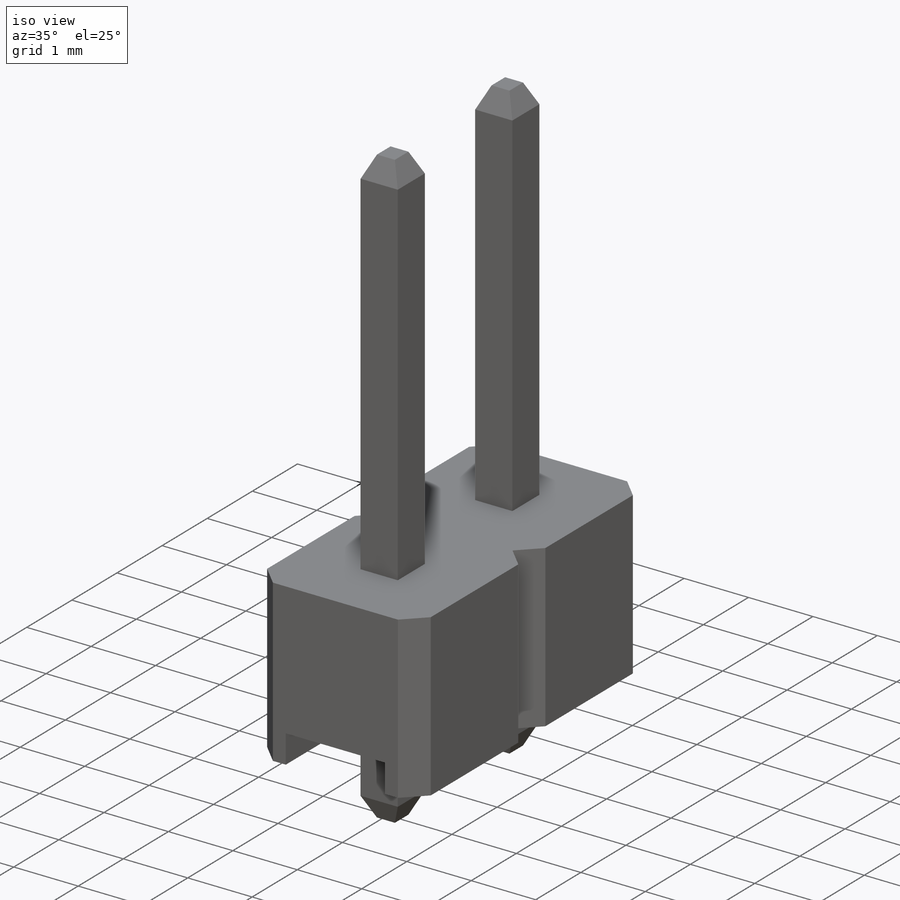
[diagram: iso view]
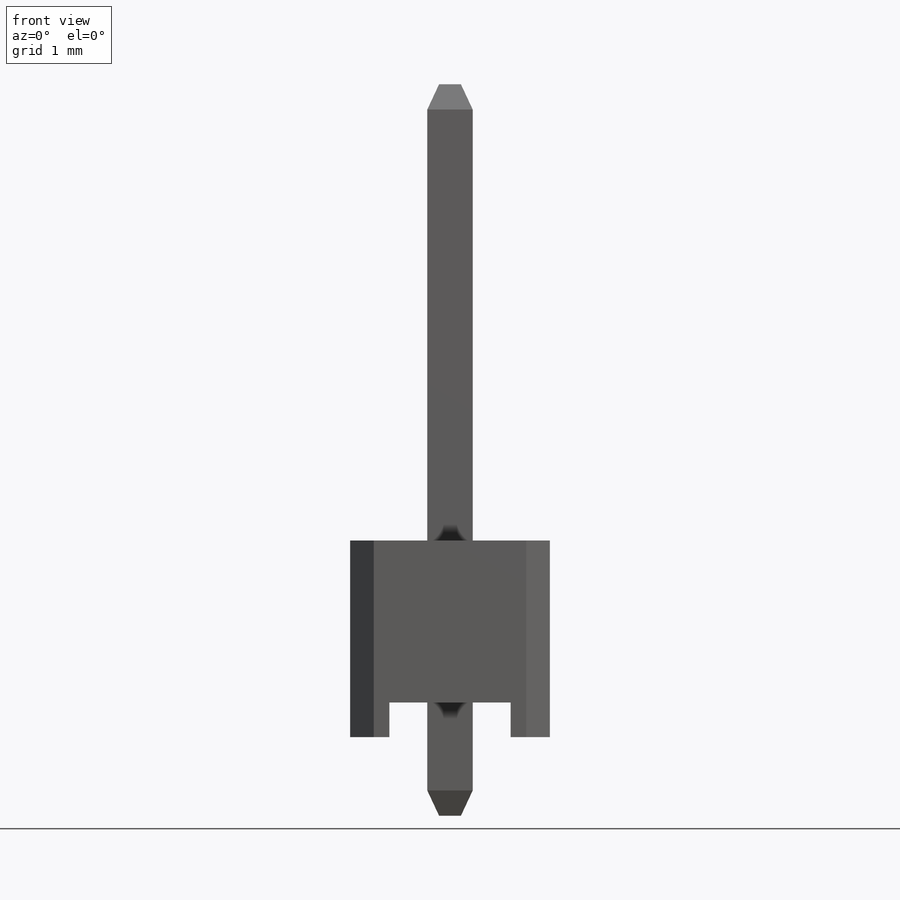
[diagram: front view]
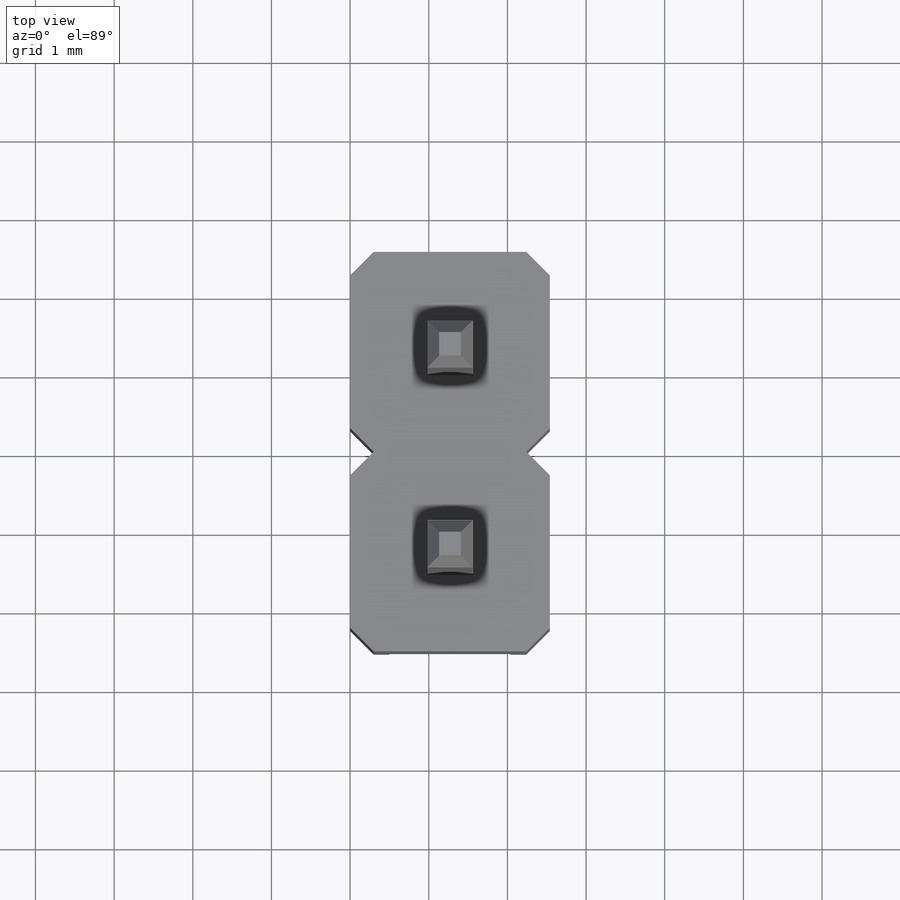
[diagram: top view]
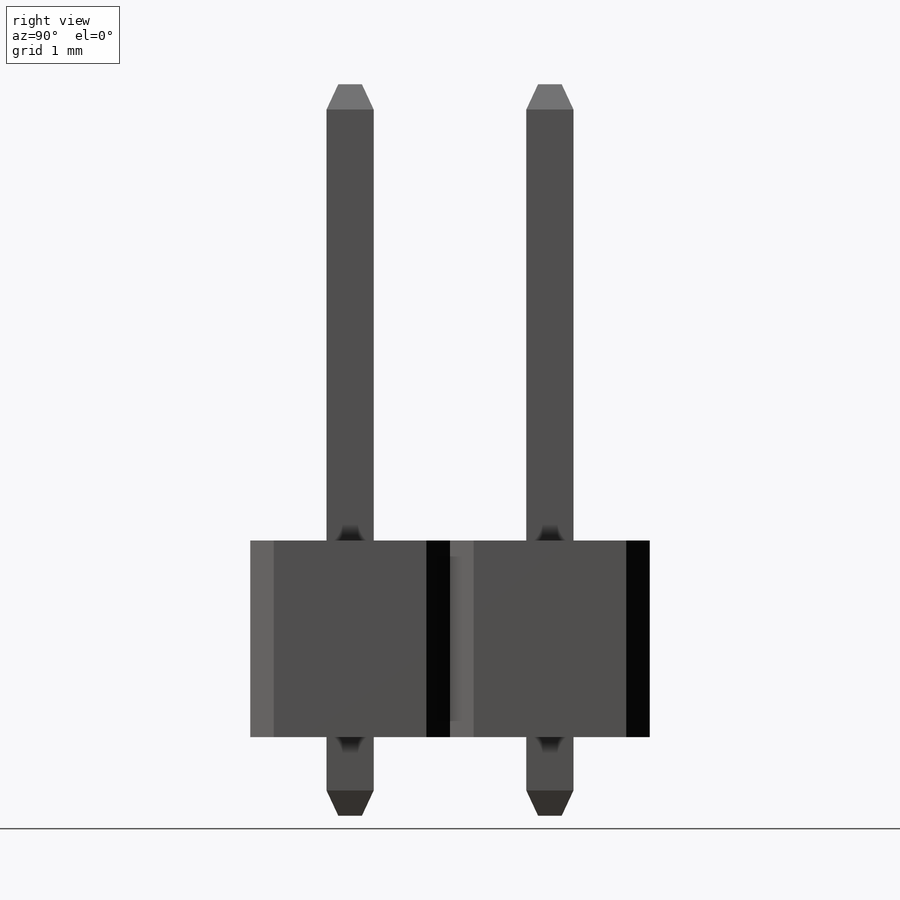
[diagram: right view]
SOLIDWORKS PART (.sldprt)
format: sldprt  version: not decoded by parser v0  size: 733,696 bytes
history: native  units: mm
features: sketch x5, plane x3, extrude x2, chamfer x2, material x1, cut_extrude x1, pattern_linear x1 (+8 scaffold rows collapsed)
feature tree (23):
  scaffold x8  (default folders/planes/origin — collapsed)
  material  "Latón"
  plane  "Alzado"
  plane  "Planta"
  plane  "Vista lateral"
  sketch  "Croquis1"  dims[D1=0.3mm D2=45.0deg D3=0.3mm D4=45.0deg D5=0.3mm D6=45.0deg D7=0.3mm D8=45.0deg]
  extrude  "Cuerpo Plástico"  Depth=2.5mm
  sketch  "Croquis2"  dims[D1=0.5mm D2=0.5mm D3=1.54mm]
  cut_extrude  "Ranura"  Depth=0.44mm
  sketch  "Croquis3"  dims[c1.D1=0.6mm c2.D1=0.0deg c3.D1=0.6mm c4.D1=0.0deg c5.D1=0.6mm]
  extrude  "Pin"  Depth=5.8mm
  chamfer  "Chaflán1"  Distance=0.15mm Angle=65deg
  chamfer  "Chaflán2"  Distance=0.15mm Angle=65deg
  sketch  "Dirección"
  sketch  "Dirección 2"
  pattern_linear  "Matriz"  Count1=2 Count2=1 Spacing1=2.54mm Spacing2=2.54mm
decode coverage: 9 of 11 modeling features carry decoded parameters
note: suppression state not decoded; provenance and decode notes live in map.json
